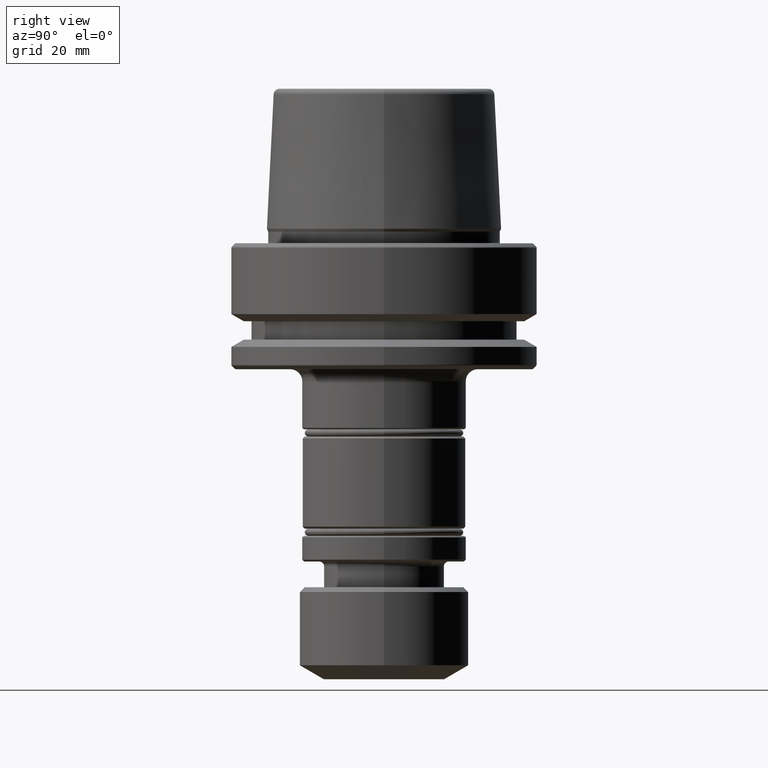
[diagram: clean part render]
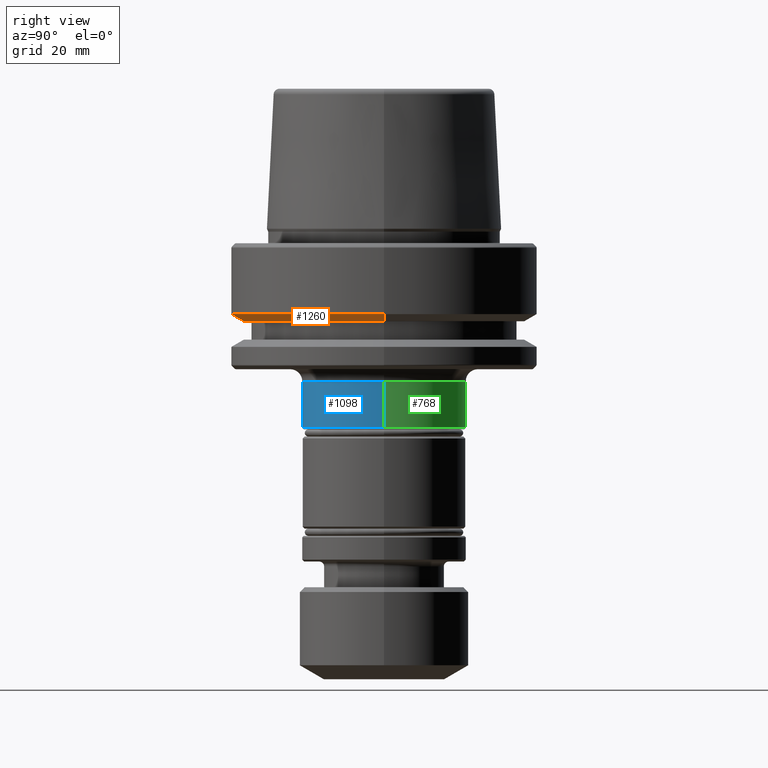
[diagram: same view with three faces highlighted in distinct colors, each labeled with its STEP entity id]
A machine part, right view with three faces highlighted in distinct colors.
Their STEP definitions:

[orange] entity #1260 — the highlighted conical surface has half-angle 60 deg.
#59 = VERTEX_POINT ( 'NONE', #1238 ) ;
#94 = CARTESIAN_POINT ( 'NONE',  ( 0.0000000000000000000, 0.0000000000000000000, -16.10000000000001600 ) ) ;
#141 = EDGE_CURVE ( 'NONE', #1680, #1676, #1952, .T. ) ;
#238 = DIRECTION ( 'NONE',  ( -0.0000000000000000000, -0.0000000000000000000, 1.000000000000000000 ) ) ;
#247 = CARTESIAN_POINT ( 'NONE',  ( -28.94089653438085100, 3.544237630528423800E-015, -16.10000000000001600 ) ) ;
#261 = FACE_OUTER_BOUND ( 'NONE', #343, .T. ) ;
#343 = EDGE_LOOP ( 'NONE', ( #470, #1154, #423, #1175 ) ) ;
#372 = DIRECTION ( 'NONE',  ( 1.000000000000000000, 0.0000000000000000000, 0.0000000000000000000 ) ) ;
#423 = ORIENTED_EDGE ( 'NONE', *, *, #141, .T. ) ;
#470 = ORIENTED_EDGE ( 'NONE', *, *, #1264, .F. ) ;
#608 = EDGE_CURVE ( 'NONE', #2058, #1676, #1197, .T. ) ;
#647 = VECTOR ( 'NONE', #709, 1000.000000000000000 ) ;
#709 = DIRECTION ( 'NONE',  ( -0.8660254037844389300, 1.060575238724907300E-016, 0.4999999999999995000 ) ) ;
#877 = DIRECTION ( 'NONE',  ( 1.000000000000000000, 0.0000000000000000000, 0.0000000000000000000 ) ) ;
#990 = AXIS2_PLACEMENT_3D ( 'NONE', #94, #238, #877 ) ;
#1020 = CARTESIAN_POINT ( 'NONE',  ( -31.50000000000000000, 3.857637417314162700E-015, -14.62250092524070100 ) ) ;
#1042 = CIRCLE ( 'NONE', #990, 28.94089653438085100 ) ;
#1043 = CARTESIAN_POINT ( 'NONE',  ( 0.0000000000000000000, 0.0000000000000000000, -14.62250092524070100 ) ) ;
#1071 = CARTESIAN_POINT ( 'NONE',  ( 31.50000000000000000, 0.0000000000000000000, -14.62250092524070100 ) ) ;
#1154 = ORIENTED_EDGE ( 'NONE', *, *, #1166, .T. ) ;
#1166 = EDGE_CURVE ( 'NONE', #59, #1680, #1042, .T. ) ;
#1168 = DIRECTION ( 'NONE',  ( -0.0000000000000000000, -0.0000000000000000000, 1.000000000000000000 ) ) ;
#1175 = ORIENTED_EDGE ( 'NONE', *, *, #608, .F. ) ;
#1197 = CIRCLE ( 'NONE', #1709, 31.50000000000000000 ) ;
#1231 = CARTESIAN_POINT ( 'NONE',  ( 28.94089653438085100, 0.0000000000000000000, -16.10000000000001600 ) ) ;
#1238 = CARTESIAN_POINT ( 'NONE',  ( -28.94089653438085100, 3.700937523921292900E-015, -16.10000000000001600 ) ) ;
#1260 = ADVANCED_FACE ( 'NONE', ( #261 ), #2015, .T. ) ;
#1264 = EDGE_CURVE ( 'NONE', #59, #2058, #1457, .T. ) ;
#1282 = CARTESIAN_POINT ( 'NONE',  ( 28.94089653438085100, 0.0000000000000000000, -16.10000000000001600 ) ) ;
#1400 = CARTESIAN_POINT ( 'NONE',  ( 0.0000000000000000000, 0.0000000000000000000, -16.10000000000001600 ) ) ;
#1457 = LINE ( 'NONE', #247, #647 ) ;
#1516 = VECTOR ( 'NONE', #1808, 1000.000000000000000 ) ;
#1535 = AXIS2_PLACEMENT_3D ( 'NONE', #1400, #1168, #1591 ) ;
#1591 = DIRECTION ( 'NONE',  ( 1.000000000000000000, 0.0000000000000000000, 0.0000000000000000000 ) ) ;
#1676 = VERTEX_POINT ( 'NONE', #1071 ) ;
#1680 = VERTEX_POINT ( 'NONE', #1231 ) ;
#1709 = AXIS2_PLACEMENT_3D ( 'NONE', #1043, #1810, #372 ) ;
#1808 = DIRECTION ( 'NONE',  ( 0.8660254037844389300, 0.0000000000000000000, 0.4999999999999995000 ) ) ;
#1810 = DIRECTION ( 'NONE',  ( -0.0000000000000000000, -0.0000000000000000000, 1.000000000000000000 ) ) ;
#1952 = LINE ( 'NONE', #1282, #1516 ) ;
#2015 = CONICAL_SURFACE ( 'NONE', #1535, 28.94089653438085100, 1.047197551196598300 ) ;
#2058 = VERTEX_POINT ( 'NONE', #1020 ) ;

[blue] entity #1098 — the highlighted cylindrical surface (partial cylindrical patch) has radius 17 mm, axis along (-0, -0, 1).
#2 = LINE ( 'NONE', #1935, #597 ) ;
#33 = AXIS2_PLACEMENT_3D ( 'NONE', #688, #1207, #1173 ) ;
#74 = ORIENTED_EDGE ( 'NONE', *, *, #1128, .F. ) ;
#133 = CYLINDRICAL_SURFACE ( 'NONE', #256, 17.00000000000234500 ) ;
#171 = DIRECTION ( 'NONE',  ( -0.0000000000000000000, -0.0000000000000000000, 1.000000000000000000 ) ) ;
#244 = EDGE_LOOP ( 'NONE', ( #1876, #538, #1568, #74 ) ) ;
#256 = AXIS2_PLACEMENT_3D ( 'NONE', #628, #991, #1632 ) ;
#357 = CARTESIAN_POINT ( 'NONE',  ( -17.00000000000234500, 2.081899558550787800E-015, -38.10000000000021500 ) ) ;
#389 = EDGE_CURVE ( 'NONE', #1117, #1293, #2, .T. ) ;
#390 = VECTOR ( 'NONE', #171, 1000.000000000000000 ) ;
#466 = CIRCLE ( 'NONE', #33, 17.00000000000234500 ) ;
#504 = EDGE_CURVE ( 'NONE', #1838, #1914, #1456, .T. ) ;
#511 = CARTESIAN_POINT ( 'NONE',  ( 17.00000000000234500, 0.0000000000000000000, -28.49999999999994300 ) ) ;
#538 = ORIENTED_EDGE ( 'NONE', *, *, #1422, .T. ) ;
#591 = CARTESIAN_POINT ( 'NONE',  ( -17.00000000000234500, 2.081899558550787800E-015, -28.49999999999994300 ) ) ;
#597 = VECTOR ( 'NONE', #650, 1000.000000000000000 ) ;
#628 = CARTESIAN_POINT ( 'NONE',  ( 0.0000000000000000000, 0.0000000000000000000, 47.57060037968214100 ) ) ;
#650 = DIRECTION ( 'NONE',  ( -0.0000000000000000000, -0.0000000000000000000, 1.000000000000000000 ) ) ;
#688 = CARTESIAN_POINT ( 'NONE',  ( 0.0000000000000000000, 0.0000000000000000000, -28.49999999999994300 ) ) ;
#991 = DIRECTION ( 'NONE',  ( -0.0000000000000000000, -0.0000000000000000000, 1.000000000000000000 ) ) ;
#1074 = DIRECTION ( 'NONE',  ( -0.0000000000000000000, -0.0000000000000000000, 1.000000000000000000 ) ) ;
#1098 = ADVANCED_FACE ( 'NONE', ( #1867 ), #133, .T. ) ;
#1106 = CARTESIAN_POINT ( 'NONE',  ( 17.00000000000234500, 0.0000000000000000000, -38.10000000000021500 ) ) ;
#1117 = VERTEX_POINT ( 'NONE', #357 ) ;
#1128 = EDGE_CURVE ( 'NONE', #1293, #1914, #466, .T. ) ;
#1173 = DIRECTION ( 'NONE',  ( 1.000000000000000000, 0.0000000000000000000, 0.0000000000000000000 ) ) ;
#1201 = DIRECTION ( 'NONE',  ( 1.000000000000000000, 0.0000000000000000000, 0.0000000000000000000 ) ) ;
#1207 = DIRECTION ( 'NONE',  ( -0.0000000000000000000, -0.0000000000000000000, 1.000000000000000000 ) ) ;
#1272 = CARTESIAN_POINT ( 'NONE',  ( 17.00000000000234500, 0.0000000000000000000, 47.57060037968214100 ) ) ;
#1280 = AXIS2_PLACEMENT_3D ( 'NONE', #1399, #1074, #1201 ) ;
#1293 = VERTEX_POINT ( 'NONE', #591 ) ;
#1399 = CARTESIAN_POINT ( 'NONE',  ( 0.0000000000000000000, 0.0000000000000000000, -38.10000000000021500 ) ) ;
#1422 = EDGE_CURVE ( 'NONE', #1117, #1838, #1505, .T. ) ;
#1456 = LINE ( 'NONE', #1272, #390 ) ;
#1505 = CIRCLE ( 'NONE', #1280, 17.00000000000234500 ) ;
#1568 = ORIENTED_EDGE ( 'NONE', *, *, #504, .T. ) ;
#1632 = DIRECTION ( 'NONE',  ( 1.000000000000000000, 0.0000000000000000000, 0.0000000000000000000 ) ) ;
#1838 = VERTEX_POINT ( 'NONE', #1106 ) ;
#1867 = FACE_OUTER_BOUND ( 'NONE', #244, .T. ) ;
#1876 = ORIENTED_EDGE ( 'NONE', *, *, #389, .F. ) ;
#1914 = VERTEX_POINT ( 'NONE', #511 ) ;
#1935 = CARTESIAN_POINT ( 'NONE',  ( -17.00000000000234500, 2.081899558550787800E-015, 47.57060037968214100 ) ) ;

[green] entity #768 — the highlighted cylindrical surface (partial cylindrical patch) has radius 17 mm, axis along (-0, -0, 1).
#2 = LINE ( 'NONE', #1935, #597 ) ;
#171 = DIRECTION ( 'NONE',  ( -0.0000000000000000000, -0.0000000000000000000, 1.000000000000000000 ) ) ;
#357 = CARTESIAN_POINT ( 'NONE',  ( -17.00000000000234500, 2.081899558550787800E-015, -38.10000000000021500 ) ) ;
#363 = DIRECTION ( 'NONE',  ( -0.0000000000000000000, -0.0000000000000000000, 1.000000000000000000 ) ) ;
#389 = EDGE_CURVE ( 'NONE', #1117, #1293, #2, .T. ) ;
#390 = VECTOR ( 'NONE', #171, 1000.000000000000000 ) ;
#494 = EDGE_CURVE ( 'NONE', #1914, #1293, #624, .T. ) ;
#504 = EDGE_CURVE ( 'NONE', #1838, #1914, #1456, .T. ) ;
#511 = CARTESIAN_POINT ( 'NONE',  ( 17.00000000000234500, 0.0000000000000000000, -28.49999999999994300 ) ) ;
#583 = EDGE_CURVE ( 'NONE', #1838, #1117, #1328, .T. ) ;
#591 = CARTESIAN_POINT ( 'NONE',  ( -17.00000000000234500, 2.081899558550787800E-015, -28.49999999999994300 ) ) ;
#597 = VECTOR ( 'NONE', #650, 1000.000000000000000 ) ;
#624 = CIRCLE ( 'NONE', #718, 17.00000000000234500 ) ;
#650 = DIRECTION ( 'NONE',  ( -0.0000000000000000000, -0.0000000000000000000, 1.000000000000000000 ) ) ;
#689 = DIRECTION ( 'NONE',  ( 1.000000000000000000, 0.0000000000000000000, 0.0000000000000000000 ) ) ;
#718 = AXIS2_PLACEMENT_3D ( 'NONE', #1699, #363, #850 ) ;
#750 = FACE_OUTER_BOUND ( 'NONE', #1840, .T. ) ;
#768 = ADVANCED_FACE ( 'NONE', ( #750 ), #1776, .T. ) ;
#774 = DIRECTION ( 'NONE',  ( 1.000000000000000000, 0.0000000000000000000, 0.0000000000000000000 ) ) ;
#850 = DIRECTION ( 'NONE',  ( 1.000000000000000000, 0.0000000000000000000, 0.0000000000000000000 ) ) ;
#860 = DIRECTION ( 'NONE',  ( -0.0000000000000000000, -0.0000000000000000000, 1.000000000000000000 ) ) ;
#936 = ORIENTED_EDGE ( 'NONE', *, *, #583, .T. ) ;
#1106 = CARTESIAN_POINT ( 'NONE',  ( 17.00000000000234500, 0.0000000000000000000, -38.10000000000021500 ) ) ;
#1117 = VERTEX_POINT ( 'NONE', #357 ) ;
#1127 = ORIENTED_EDGE ( 'NONE', *, *, #494, .F. ) ;
#1272 = CARTESIAN_POINT ( 'NONE',  ( 17.00000000000234500, 0.0000000000000000000, 47.57060037968214100 ) ) ;
#1293 = VERTEX_POINT ( 'NONE', #591 ) ;
#1328 = CIRCLE ( 'NONE', #1481, 17.00000000000234500 ) ;
#1396 = ORIENTED_EDGE ( 'NONE', *, *, #504, .F. ) ;
#1456 = LINE ( 'NONE', #1272, #390 ) ;
#1481 = AXIS2_PLACEMENT_3D ( 'NONE', #1564, #1663, #774 ) ;
#1519 = ORIENTED_EDGE ( 'NONE', *, *, #389, .T. ) ;
#1564 = CARTESIAN_POINT ( 'NONE',  ( 0.0000000000000000000, 0.0000000000000000000, -38.10000000000021500 ) ) ;
#1663 = DIRECTION ( 'NONE',  ( -0.0000000000000000000, -0.0000000000000000000, 1.000000000000000000 ) ) ;
#1699 = CARTESIAN_POINT ( 'NONE',  ( 0.0000000000000000000, 0.0000000000000000000, -28.49999999999994300 ) ) ;
#1776 = CYLINDRICAL_SURFACE ( 'NONE', #1986, 17.00000000000234500 ) ;
#1838 = VERTEX_POINT ( 'NONE', #1106 ) ;
#1840 = EDGE_LOOP ( 'NONE', ( #936, #1519, #1127, #1396 ) ) ;
#1914 = VERTEX_POINT ( 'NONE', #511 ) ;
#1935 = CARTESIAN_POINT ( 'NONE',  ( -17.00000000000234500, 2.081899558550787800E-015, 47.57060037968214100 ) ) ;
#1986 = AXIS2_PLACEMENT_3D ( 'NONE', #1992, #860, #689 ) ;
#1992 = CARTESIAN_POINT ( 'NONE',  ( 0.0000000000000000000, 0.0000000000000000000, 47.57060037968214100 ) ) ;